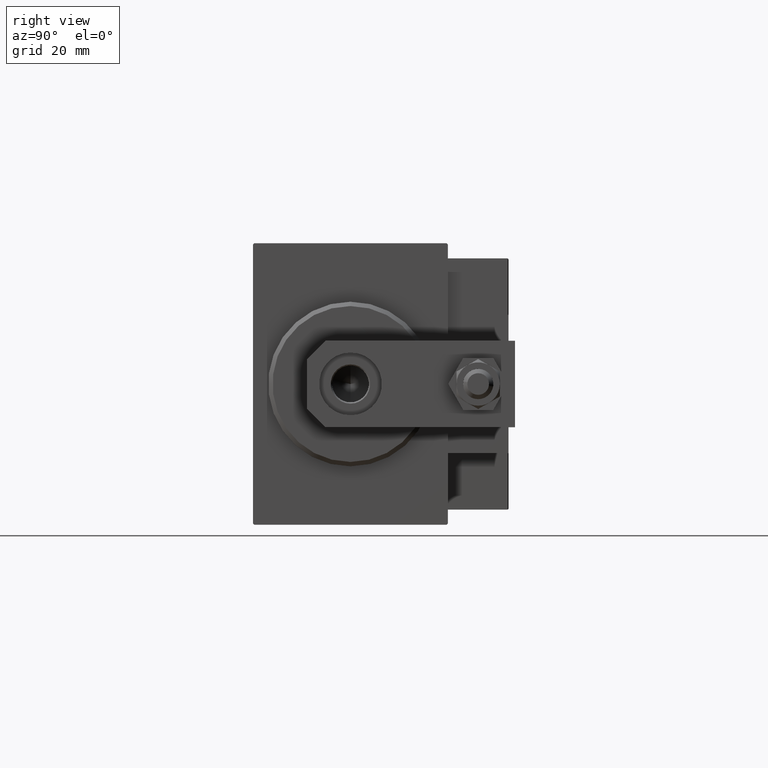
[diagram: clean part render]
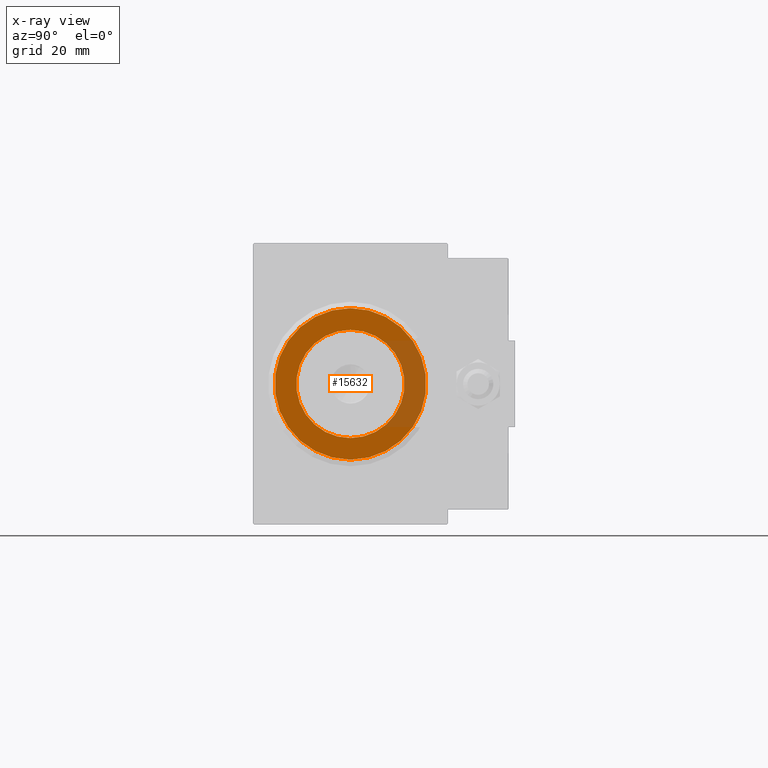
[diagram: x-ray — body ghosted, one internal face saturated and labeled with its STEP entity id]
A machine part, right view, then the same camera in x-ray: the body is ghosted and one INTERNAL B-rep face — a face not visible from any outside direction — is saturated and labeled: STEP entity #15632.
In plain terms, the highlighted planar face has unit normal (1, 0, -0).
Its self-contained STEP definition (entity closure, byte-faithful):
#2416 = CARTESIAN_POINT ( 'NONE',  ( 4.999999999999997335, 0.000000000000000000, 0.000000000000000000 ) ) ;
#2715 = EDGE_CURVE ( 'NONE', #14357, #45622, #28028, .T. ) ;
#3386 = DIRECTION ( 'NONE',  ( 0.000000000000000000, 0.000000000000000000, 1.000000000000000000 ) ) ;
#4119 = CARTESIAN_POINT ( 'NONE',  ( 5.000000000000000000, 0.000000000000000000, 0.000000000000000000 ) ) ;
#5430 = DIRECTION ( 'NONE',  ( 0.000000000000000000, 0.000000000000000000, 1.000000000000000000 ) ) ;
#7392 = FACE_OUTER_BOUND ( 'NONE', #7770, .T. ) ;
#7770 = EDGE_LOOP ( 'NONE', ( #45247, #32216 ) ) ;
#9385 = DIRECTION ( 'NONE',  ( 0.000000000000000000, 0.000000000000000000, 1.000000000000000000 ) ) ;
#10426 = DIRECTION ( 'NONE',  ( -1.000000000000000000, 0.000000000000000000, 0.000000000000000000 ) ) ;
#10920 = DIRECTION ( 'NONE',  ( 0.000000000000000000, 0.000000000000000000, 1.000000000000000000 ) ) ;
#14357 = VERTEX_POINT ( 'NONE', #29999 ) ;
#15632 = ADVANCED_FACE ( 'NONE', ( #41965, #7392 ), #22426, .T. ) ;
#18710 = ORIENTED_EDGE ( 'NONE', *, *, #2715, .F. ) ;
#19400 = DIRECTION ( 'NONE',  ( -1.000000000000000000, 0.000000000000000000, 0.000000000000000000 ) ) ;
#20833 = AXIS2_PLACEMENT_3D ( 'NONE', #2416, #44509, #5430 ) ;
#22426 = PLANE ( 'NONE',  #36358 ) ;
#22458 = AXIS2_PLACEMENT_3D ( 'NONE', #49512, #33248, #10920 ) ;
#24439 = CARTESIAN_POINT ( 'NONE',  ( 5.000000000000000000, 0.000000000000000000, 17.50000000000000355 ) ) ;
#28028 = CIRCLE ( 'NONE', #20833, 12.50000000000000000 ) ;
#28314 = AXIS2_PLACEMENT_3D ( 'NONE', #35947, #43711, #9385 ) ;
#29131 = CARTESIAN_POINT ( 'NONE',  ( 5.000000000000000000, 2.143131898507868643E-15, -17.50000000000000355 ) ) ;
#29467 = CARTESIAN_POINT ( 'NONE',  ( 4.999999999999997335, 0.000000000000000000, 0.000000000000000000 ) ) ;
#29999 = CARTESIAN_POINT ( 'NONE',  ( 4.999999999999997335, 0.000000000000000000, 12.50000000000000000 ) ) ;
#30594 = VERTEX_POINT ( 'NONE', #24439 ) ;
#31205 = ORIENTED_EDGE ( 'NONE', *, *, #45303, .F. ) ;
#32216 = ORIENTED_EDGE ( 'NONE', *, *, #32615, .T. ) ;
#32355 = CIRCLE ( 'NONE', #38753, 12.50000000000000000 ) ;
#32615 = EDGE_CURVE ( 'NONE', #35975, #30594, #38445, .T. ) ;
#32866 = EDGE_LOOP ( 'NONE', ( #18710, #31205 ) ) ;
#33248 = DIRECTION ( 'NONE',  ( -1.000000000000000000, 0.000000000000000000, 0.000000000000000000 ) ) ;
#35947 = CARTESIAN_POINT ( 'NONE',  ( 5.000000000000000000, 0.000000000000000000, 0.000000000000000000 ) ) ;
#35975 = VERTEX_POINT ( 'NONE', #29131 ) ;
#36358 = AXIS2_PLACEMENT_3D ( 'NONE', #4119, #19400, #3386 ) ;
#38445 = CIRCLE ( 'NONE', #22458, 17.50000000000000355 ) ;
#38753 = AXIS2_PLACEMENT_3D ( 'NONE', #29467, #10426, #40235 ) ;
#40235 = DIRECTION ( 'NONE',  ( 0.000000000000000000, 0.000000000000000000, 1.000000000000000000 ) ) ;
#41413 = CARTESIAN_POINT ( 'NONE',  ( 4.999999999999997335, 1.530808498934191521E-15, -12.50000000000000000 ) ) ;
#41909 = EDGE_CURVE ( 'NONE', #30594, #35975, #49148, .T. ) ;
#41965 = FACE_BOUND ( 'NONE', #32866, .T. ) ;
#43711 = DIRECTION ( 'NONE',  ( -1.000000000000000000, 0.000000000000000000, 0.000000000000000000 ) ) ;
#44509 = DIRECTION ( 'NONE',  ( -1.000000000000000000, 0.000000000000000000, 0.000000000000000000 ) ) ;
#45247 = ORIENTED_EDGE ( 'NONE', *, *, #41909, .T. ) ;
#45303 = EDGE_CURVE ( 'NONE', #45622, #14357, #32355, .T. ) ;
#45622 = VERTEX_POINT ( 'NONE', #41413 ) ;
#49148 = CIRCLE ( 'NONE', #28314, 17.50000000000000355 ) ;
#49512 = CARTESIAN_POINT ( 'NONE',  ( 5.000000000000000000, 0.000000000000000000, 0.000000000000000000 ) ) ;